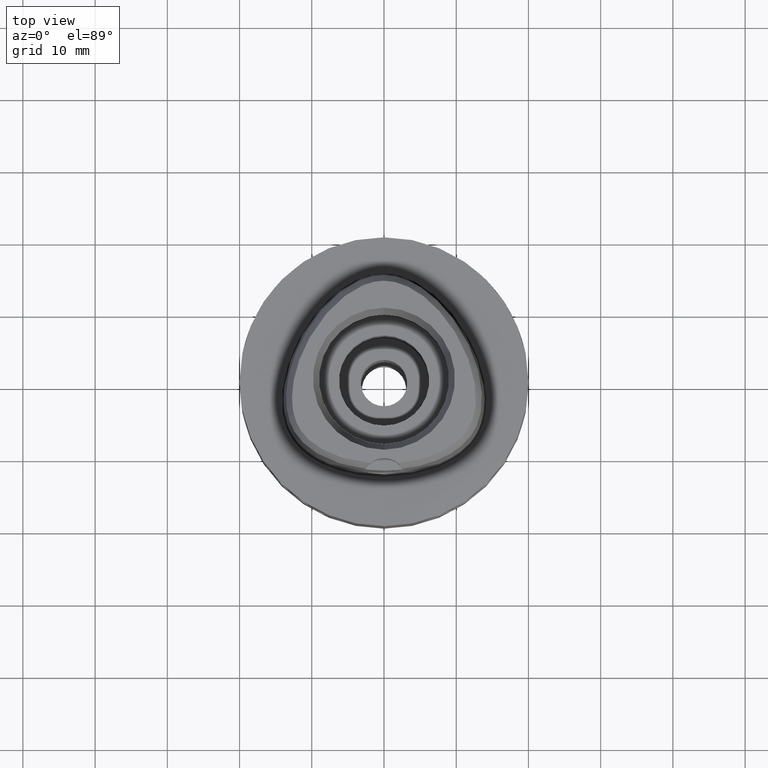
[diagram: clean part render]
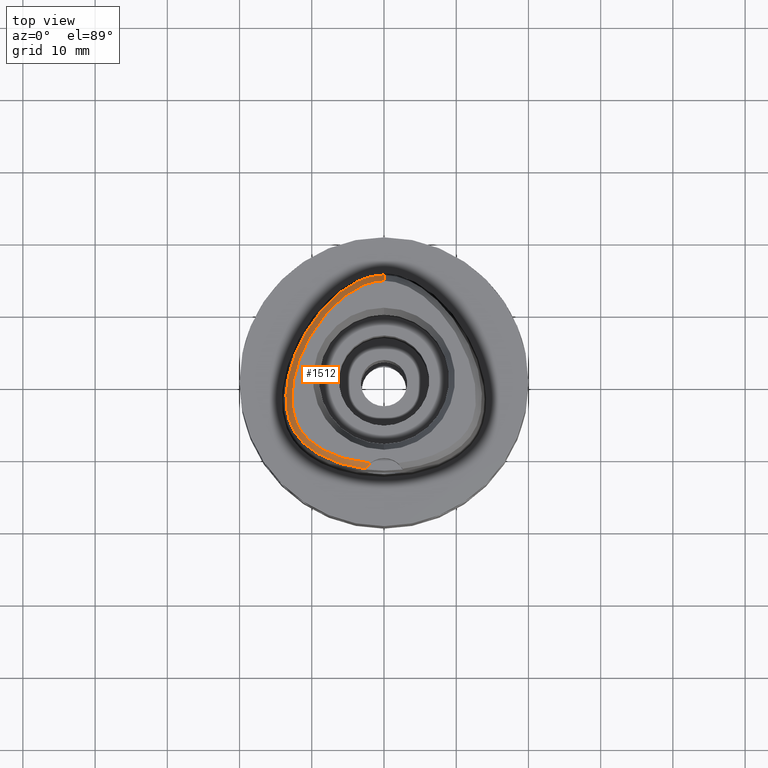
[diagram: same view with one face highlighted and labeled with its STEP entity id]
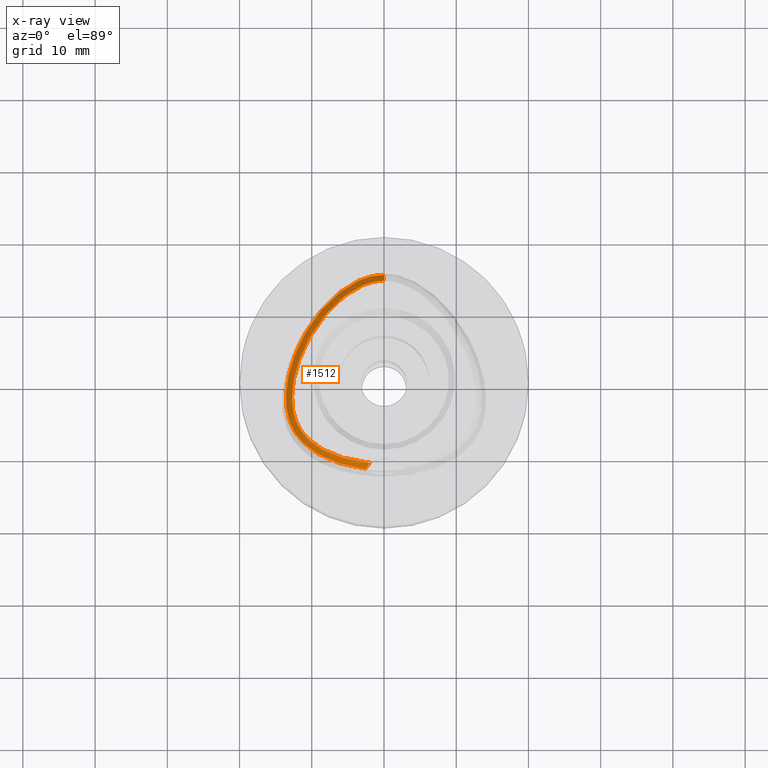
[diagram: x-ray of the same camera — body ghosted, the highlighted face saturated]
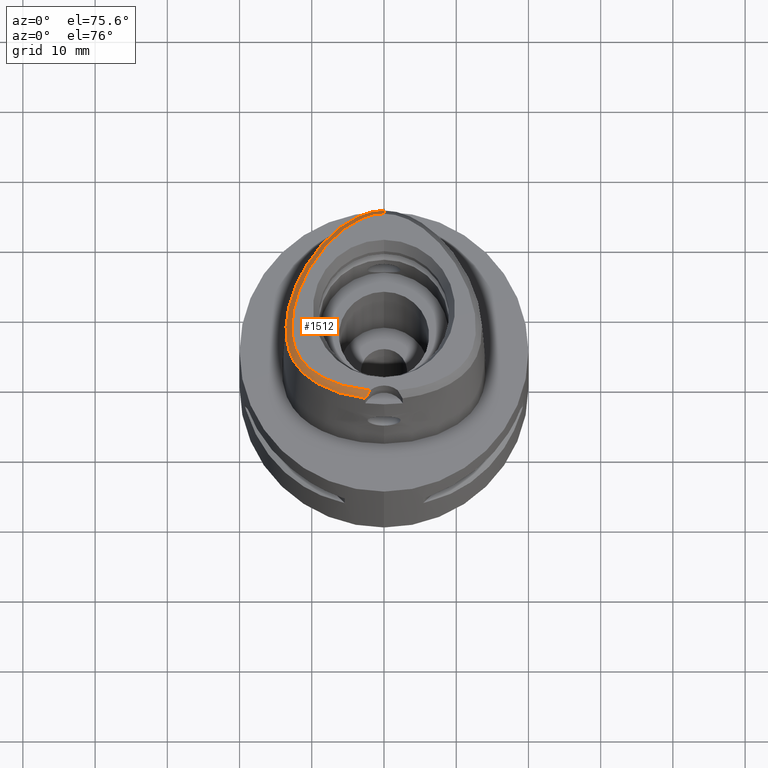
[diagram: same view with one face highlighted and labeled with its STEP entity id]
A machine part, top view. The second image highlights one B-rep face of the part: STEP entity #1512.
The next image is the same camera in x-ray: the body ghosted, the highlighted face saturated — about 0% of this face is hidden behind the body in this view.
A second angle (auxiliary view) of the same face is appended — the face is thin or edge-on in the first view.
In plain terms, the highlighted face is a freeform B-spline surface patch.
Its self-contained STEP definition (entity closure, byte-faithful):
#13 = VECTOR ( 'NONE', #2092, 999.9999999999998863 ) ;
#25 = CARTESIAN_POINT ( 'NONE',  ( -6.443149272929000311E-11, 14.40001989798000182, 22.52071729252999788 ) ) ;
#32 = CARTESIAN_POINT ( 'NONE',  ( -0.5587112659834999606, 14.44388080763000026, 22.41684450240000359 ) ) ;
#46 = CARTESIAN_POINT ( 'NONE',  ( -12.25469206170605219, -5.716132091641457968, 24.00000000000688871 ) ) ;
#66 = CARTESIAN_POINT ( 'NONE',  ( -5.772139147997672026, -10.95484250004509086, 23.99999999999592859 ) ) ;
#113 = CARTESIAN_POINT ( 'NONE',  ( -12.61525294082025894, -0.8186751790038890864, 23.99999999999378275 ) ) ;
#116 = CARTESIAN_POINT ( 'NONE',  ( -12.97551377064000100, -5.338984517884000525, 22.97916533765000224 ) ) ;
#119 = CARTESIAN_POINT ( 'NONE',  ( -1.140533558630999922, 14.37695949581000043, 22.41684463344000022 ) ) ;
#137 = CARTESIAN_POINT ( 'NONE',  ( -10.27173464031000094, -8.914690186308000364, 23.54148595951999923 ) ) ;
#162 = CARTESIAN_POINT ( 'NONE',  ( -12.60905440550000023, -3.966745885157999751, 24.10380662193999868 ) ) ;
#184 = CARTESIAN_POINT ( 'NONE',  ( -10.06954171409999965, -8.672755295886998894, 24.10380665870999906 ) ) ;
#202 = CARTESIAN_POINT ( 'NONE',  ( -11.80291349019999991, -7.208535613558999522, 23.54148591064999962 ) ) ;
#229 = CARTESIAN_POINT ( 'NONE',  ( -7.666612691137999924, -10.51786196347999791, 23.54148587361000011 ) ) ;
#255 = CARTESIAN_POINT ( 'NONE',  ( -7.925363593001000240, -11.09282319319000010, 22.41684426452999901 ) ) ;
#270 = CARTESIAN_POINT ( 'NONE',  ( -11.21140785288000075, 4.530865700386000228, 23.54148635299999981 ) ) ;
#280 = CARTESIAN_POINT ( 'NONE',  ( -5.847186997153000831, -11.20067959551999870, 23.54148721676999756 ) ) ;
#292 = CARTESIAN_POINT ( 'NONE',  ( -12.42192831520000063, 2.394620130643000167, 22.97916540028000298 ) ) ;
#316 = CARTESIAN_POINT ( 'NONE',  ( -10.52705446654000099, 7.074799394935999963, 22.41684537186999648 ) ) ;
#327 = CARTESIAN_POINT ( 'NONE',  ( -1.699756482293000026, -12.27757190400999932, 22.97916598236000141 ) ) ;
#337 = EDGE_CURVE ( 'NONE', #2611, #3045, #1459, .T. ) ;
#341 = CARTESIAN_POINT ( 'NONE',  ( -5.136066826567000199, 12.75801933414000189, 22.41684930851999979 ) ) ;
#351 = CARTESIAN_POINT ( 'NONE',  ( -12.56273685367470350, -4.606827092195338480, 24.00000000000433431 ) ) ;
#363 = CARTESIAN_POINT ( 'NONE',  ( -6.057020119515000189, 10.88383457347000061, 24.10380660268999975 ) ) ;
#378 = CARTESIAN_POINT ( 'NONE',  ( -0.5099131192452001082, 13.81508828016000123, 23.54148594250999693 ) ) ;
#395 = CARTESIAN_POINT ( 'NONE',  ( -2.090687641573861111, -11.66928185012599073, 23.99999999999905498 ) ) ;
#419 = CARTESIAN_POINT ( 'NONE',  ( -9.587006019868628215, -9.122502708652755032, 24.00000000000070699 ) ) ;
#473 = CARTESIAN_POINT ( 'NONE',  ( -9.075996546496414297, -10.47368666963087058, 22.52071717950003915 ) ) ;
#492 = CARTESIAN_POINT ( 'NONE',  ( -12.69042073802000026, -2.527353242947999679, 24.10380664842000087 ) ) ;
#494 = CARTESIAN_POINT ( 'NONE',  ( -2.085007463664000138, 13.18870631288999995, 24.10380668342000021 ) ) ;
#508 = CARTESIAN_POINT ( 'NONE',  ( -9.086067383146117393, 7.628776179868300922, 24.00000000000251532 ) ) ;
#512 = CARTESIAN_POINT ( 'NONE',  ( -10.47392756652000045, -9.156625076727999968, 22.97916526031999851 ) ) ;
#527 = CARTESIAN_POINT ( 'NONE',  ( -12.20504609755509051, 1.147983555867035266, 23.99999999999583977 ) ) ;
#534 = CARTESIAN_POINT ( 'NONE',  ( -12.19991647383000100, -5.696431215580000540, 24.10380661763000276 ) ) ;
#556 = CARTESIAN_POINT ( 'NONE',  ( -13.49374773732000143, -0.6923154879764999992, 22.41684465063999809 ) ) ;
#576 = CARTESIAN_POINT ( 'NONE',  ( -12.33185262397000059, -7.552035420339000105, 22.41684439239999804 ) ) ;
#607 = CARTESIAN_POINT ( 'NONE',  ( -12.48241503205562175, -7.206725678149776826, 22.52071717950003915 ) ) ;
#618 = CARTESIAN_POINT ( 'NONE',  ( -3.286966782461000047, 12.71674937300000074, 24.10380639701000050 ) ) ;
#627 = CARTESIAN_POINT ( 'NONE',  ( -7.537237240207000255, -10.23038134863000082, 24.10380667815000066 ) ) ;
#638 = CARTESIAN_POINT ( 'NONE',  ( -11.82504604558000061, 2.191689508729000035, 24.10380664447000143 ) ) ;
#662 = CARTESIAN_POINT ( 'NONE',  ( -9.047615977473000726, 9.144186784852001537, 22.41684441057999777 ) ) ;
#672 = CARTESIAN_POINT ( 'NONE',  ( -1.650782096077000105, -11.64940696278000054, 24.10380658528000097 ) ) ;
#687 = CARTESIAN_POINT ( 'NONE',  ( -12.39158090488999875, 0.1220192446411000053, 24.10380641104000077 ) ) ;
#713 = CARTESIAN_POINT ( 'NONE',  ( -3.936619554336000526, 12.38037942558000104, 24.10380621796000256 ) ) ;
#725 = CARTESIAN_POINT ( 'NONE',  ( -2.674008066188253707, -11.60894038318100385, 23.99999999999576517 ) ) ;
#728 = CARTESIAN_POINT ( 'NONE',  ( -0.4855140458760999755, 13.50069201642000039, 24.10380666255999671 ) ) ;
#747 = CARTESIAN_POINT ( 'NONE',  ( 0.3758632881470999609, 13.81820686212999938, 23.54148593387999711 ) ) ;
#766 = CARTESIAN_POINT ( 'NONE',  ( -4.742193981401064740, -11.23614232520673006, 24.00000000000749623 ) ) ;
#794 = CARTESIAN_POINT ( 'NONE',  ( 0.4105800381374000718, 14.44727814113999997, 22.41684447259000024 ) ) ;
#835 = CARTESIAN_POINT ( 'NONE',  ( -13.28318964533000113, -1.661111837063999896, 22.97916527911999651 ) ) ;
#840 = CARTESIAN_POINT ( 'NONE',  ( -1.669963073954999988, 13.95397741518000068, 22.97916563516999844 ) ) ;
#857 = CARTESIAN_POINT ( 'NONE',  ( -0.1649659295969297945, 13.57127880779930074, 23.99999999999904077 ) ) ;
#861 = CARTESIAN_POINT ( 'NONE',  ( -11.14601654370999917, -8.068630663902998990, 23.54148605030999875 ) ) ;
#882 = CARTESIAN_POINT ( 'NONE',  ( -12.86783612342000005, -6.566596422905000452, 22.41684485336000066 ) ) ;
#886 = CARTESIAN_POINT ( 'NONE',  ( -8.737913808020921991, 9.598635897784602022, 22.52071717950003915 ) ) ;
#906 = CARTESIAN_POINT ( 'NONE',  ( -12.65460634640999871, -1.710361094012999850, 24.10380665678999890 ) ) ;
#913 = CARTESIAN_POINT ( 'NONE',  ( -13.49620532111569737, -4.288887307616998434, 22.52071717950003915 ) ) ;
#926 = EDGE_CURVE ( 'NONE', #1671, #3103, #2069, .T. ) ;
#928 = CARTESIAN_POINT ( 'NONE',  ( -12.36783527128000060, -5.170387074255000215, 24.10380665085000018 ) ) ;
#969 = CARTESIAN_POINT ( 'NONE',  ( -8.311964507322999296, 8.550000847090000633, 24.10380666857999898 ) ) ;
#977 = CARTESIAN_POINT ( 'NONE',  ( -7.024286928901999794, -11.46519040745999973, 22.41684585830000032 ) ) ;
#984 = CARTESIAN_POINT ( 'NONE',  ( -13.19588017074434383, -5.576003004572641863, 22.52071717950003915 ) ) ;
#995 = CARTESIAN_POINT ( 'NONE',  ( -2.901150047562000456, 13.57035146543999815, 22.97916493167999974 ) ) ;
#1006 = CARTESIAN_POINT ( 'NONE',  ( -8.440659236000000121, -10.13734018728999864, 23.54148601579000299 ) ) ;
#1016 = CARTESIAN_POINT ( 'NONE',  ( -6.672720912247000591, 11.60166517212999970, 22.41684541544000098 ) ) ;
#1026 = CARTESIAN_POINT ( 'NONE',  ( -9.295464573598000158, -10.00775292844000042, 22.97916577844000230 ) ) ;
#1039 = CARTESIAN_POINT ( 'NONE',  ( -5.515257369087000150, 11.72233301594999944, 23.54148583502000136 ) ) ;
#1066 = CARTESIAN_POINT ( 'NONE',  ( -3.693957379602000213, 13.57055876278000106, 22.41684855217000205 ) ) ;
#1082 = FACE_OUTER_BOUND ( 'NONE', #2062, .T. ) ;
#1165 = CARTESIAN_POINT ( 'NONE',  ( -8.993364728475985004, -9.521626202593669319, 24.00000000000109779 ) ) ;
#1171 = CARTESIAN_POINT ( 'NONE',  ( 0.2360216581145999915, 13.50991829754000051, 24.10380664186000033 ) ) ;
#1173 = CARTESIAN_POINT ( 'NONE',  ( -3.014424021963416411, -12.39773933600168832, 22.52071717950003915 ) ) ;
#1186 = CARTESIAN_POINT ( 'NONE',  ( -6.094907065610416730, 10.92800604363542760, 24.00000000000135358 ) ) ;
#1190 = CARTESIAN_POINT ( 'NONE',  ( -12.81483659771999939, -4.657277590897000330, 23.54148596008999661 ) ) ;
#1193 = CARTESIAN_POINT ( 'NONE',  ( -1.526970197572999899, 13.33976193712999958, 24.10380662058999945 ) ) ;
#1207 = CARTESIAN_POINT ( 'NONE',  ( -2.568703252653000479, -12.45023756080000155, 22.52071717950000007 ) ) ;
#1215 = CARTESIAN_POINT ( 'NONE',  ( -13.30237575890999935, -3.313853358129000171, 22.97916603002999736 ) ) ;
#1237 = CARTESIAN_POINT ( 'NONE',  ( -13.12401121793999970, -4.719149981269000094, 22.97916526159999862 ) ) ;
#1252 = CARTESIAN_POINT ( 'NONE',  ( -10.97950574081377439, 4.420048049596443818, 23.99999999999947065 ) ) ;
#1255 = CARTESIAN_POINT ( 'NONE',  ( -12.98759379449999862, -3.296150082543999993, 23.54148630523000207 ) ) ;
#1281 = CARTESIAN_POINT ( 'NONE',  ( -12.00008352042999960, -8.023300398978999937, 22.41684532163999677 ) ) ;
#1308 = CARTESIAN_POINT ( 'NONE',  ( -4.875545472812000014, -11.79264091854000185, 22.97916713324999805 ) ) ;
#1313 = CARTESIAN_POINT ( 'NONE',  ( -11.01301038052233494, 6.358384390486220283, 22.52071717950003915 ) ) ;
#1323 = CARTESIAN_POINT ( 'NONE',  ( -9.295163196064999411, 7.778236719377999542, 23.54148641852000168 ) ) ;
#1332 = CARTESIAN_POINT ( 'NONE',  ( -1.675269289185000066, -11.96348943340000126, 23.54148628381999941 ) ) ;
#1347 = CARTESIAN_POINT ( 'NONE',  ( -7.465916122270000344, 10.87885843689000076, 22.41684759708000030 ) ) ;
#1357 = CARTESIAN_POINT ( 'NONE',  ( -6.913607317285999976, -11.17001860195999896, 22.97916609674999933 ) ) ;
#1374 = CARTESIAN_POINT ( 'NONE',  ( -12.29319110894000033, 3.641832017933000376, 22.41684468023999699 ) ) ;
#1385 = CARTESIAN_POINT ( 'NONE',  ( -1.724243675399999898, -12.59165437463000004, 22.41684568089999630 ) ) ;
#1397 = CARTESIAN_POINT ( 'NONE',  ( -13.06098757605000138, 1.382478498715000281, 22.41684865862000109 ) ) ;
#1414 = CARTESIAN_POINT ( 'NONE',  ( -7.796255767189999908, 9.633441591037998464, 23.54148630717000046 ) ) ;
#1430 = CARTESIAN_POINT ( 'NONE',  ( -1.908902231482000111, -11.68567671431999955, 24.00000000000000000 ) ) ;
#1435 = CARTESIAN_POINT ( 'NONE',  ( 0.3932216631423000042, 14.13274250164000101, 22.97916520322999645 ) ) ;
#1459 = B_SPLINE_CURVE_WITH_KNOTS ( 'NONE', 3,
 ( #1430, #3951, #2173, #2819 ),
 .UNSPECIFIED., .F., .F.,
 ( 4, 4 ),
 ( 0.0000000000000000000, 1.000000000000000000 ),
 .UNSPECIFIED. ) ;
#1462 = CARTESIAN_POINT ( 'NONE',  ( -0.9957134845631000486, 13.44212022041999965, 24.10380665396999689 ) ) ;
#1512 = ADVANCED_FACE ( 'NONE', ( #1082 ), #1537, .F. ) ;
#1523 = CARTESIAN_POINT ( 'NONE',  ( -3.634083631275654813, -11.46763769350052975, 23.99999999999974776 ) ) ;
#1537 = B_SPLINE_SURFACE_WITH_KNOTS ( 'NONE', 3, 3, ( 
 ( #1900, #747, #1435, #794 ),
 ( #1171, #2849, #4267, #3582 ),
 ( #2219, #2498, #4001, #3910 ),
 ( #728, #378, #4289, #32 ),
 ( #1462, #2606, #4378, #119 ),
 ( #1193, #4025, #840, #2264 ),
 ( #494, #1550, #3678, #2961 ),
 ( #3301, #4155, #995, #3125 ),
 ( #618, #3100, #2729, #1066 ),
 ( #713, #2118, #2141, #3801 ),
 ( #4222, #2782, #3497, #341 ),
 ( #2384, #1039, #3544, #4203 ),
 ( #363, #3077, #1771, #1016 ),
 ( #2457, #2413, #2047, #1347 ),
 ( #3170, #1414, #4495, #4593 ),
 ( #969, #2433, #4547, #662 ),
 ( #2754, #1323, #3525, #1749 ),
 ( #3452, #2830, #4246, #316 ),
 ( #3827, #3472, #3149, #2482 ),
 ( #3895, #270, #2802, #3875 ),
 ( #1705, #4517, #4181, #1374 ),
 ( #638, #2068, #292, #3847 ),
 ( #1726, #2091, #4570, #1397 ),
 ( #687, #3366, #2350, #4021 ),
 ( #4435, #3003, #3717, #556 ),
 ( #906, #4418, #835, #1980 ),
 ( #492, #3674, #1548, #2648 ),
 ( #1938, #1255, #1215, #2602 ),
 ( #162, #3384, #1639, #3298 ),
 ( #2958, #1190, #1237, #3341 ),
 ( #928, #1570, #116, #3741 ),
 ( #534, #2283, #3041, #4087 ),
 ( #4066, #2671, #2628, #882 ),
 ( #2261, #4458, #3697, #1616 ),
 ( #3020, #202, #2327, #576 ),
 ( #1594, #1917, #4045, #1281 ),
 ( #2693, #861, #4374, #2303 ),
 ( #3759, #4116, #3318, #1962 ),
 ( #184, #137, #512, #2981 ),
 ( #4402, #4211, #3884, #2738 ),
 ( #2423, #2003, #1026, #2468 ),
 ( #3086, #1006, #3407, #2056 ),
 ( #627, #229, #2105, #255 ),
 ( #3135, #3461, #1357, #977 ),
 ( #3434, #280, #2394, #1714 ),
 ( #2443, #4233, #1308, #4164 ),
 ( #3837, #1691, #3064, #3812 ),
 ( #3858, #4557, #3509, #4503 ),
 ( #1735, #3111, #1666, #4529 ),
 ( #672, #1332, #327, #1385 ),
 ( #2767, #1760, #2791, #3159 ) ),
 .UNSPECIFIED., .F., .F., .F.,
 ( 4, 1, 1, 1, 1, 1, 1, 1, 1, 1, 1, 1, 1, 1, 1, 1, 1, 1, 1, 1, 1, 1, 1, 1, 1, 1, 1, 1, 1, 1, 1, 1, 1, 1, 1, 1, 1, 1, 1, 1, 1, 1, 1, 1, 1, 1, 1, 1, 4 ),
 ( 4, 4 ),
 ( -0.01579924575333999798, 0.0000000000000000000, 0.02200280252723000110, 0.04400560505777000031, 0.06600840758830001098, 0.08801121011883999978, 0.1100140126494000004, 0.1320168151798999934, 0.1540196177104999897, 0.1760224202409000072, 0.1980252227715000035, 0.2200280253019999965, 0.2420308278325999929, 0.2640336303632000448, 0.2860364328937000100, 0.3080392354242000308, 0.3300420379546999960, 0.3520448404853000479, 0.3740476430157999577, 0.3960504455463999540, 0.4180532480767999992, 0.4400560506073999956, 0.4620588531379000163, 0.4840616556684999572, 0.5060644581990999535, 0.5280672607295000542, 0.5500700632601001061, 0.5720728657906000159, 0.5940756683211999567, 0.6160784708517000885, 0.6380812733821999982, 0.6600840759127000190, 0.6820868784432999599, 0.7040896809739000117, 0.7260924835043999215, 0.7480952860348999423, 0.7700980885653999630, 0.7921008910960000149, 0.8141036936264999246, 0.8361064961570999765, 0.8581092986875999973, 0.8801121012181000181, 0.9021149037485999278, 0.9241177062791999797, 0.9461205088098000315, 0.9681233113403000523, 0.9901261138707999621, 1.000000000000000000, 1.006872802233000019 ),
 ( -0.04824381052662999464, 1.048285641617000108 ),
 .UNSPECIFIED. ) ;
#1545 = CARTESIAN_POINT ( 'NONE',  ( -8.357232578963559533, 8.586563883649830586, 24.00000000000259703 ) ) ;
#1548 = CARTESIAN_POINT ( 'NONE',  ( -13.32090963439000042, -2.519845155334999642, 22.97916536149000066 ) ) ;
#1550 = CARTESIAN_POINT ( 'NONE',  ( -2.178894131602000517, 13.48971271545000050, 23.54148585033000174 ) ) ;
#1570 = CARTESIAN_POINT ( 'NONE',  ( -12.67167452095999991, -5.254685796070000414, 23.54148599424999944 ) ) ;
#1594 = CARTESIAN_POINT ( 'NONE',  ( -11.24840162645999797, -7.448943767660000326, 24.10380660885000026 ) ) ;
#1599 = B_SPLINE_CURVE_WITH_KNOTS ( 'NONE', 3,
 ( #3272, #395, #725, #1523, #766, #66, #3974, #2932, #2151, #1165, #419, #3598, #2556, #2131, #2172, #3575, #2575, #1827, #46, #3535, #351, #3315, #1977, #4063, #3037, #113, #2300, #527, #3692, #4416, #1252, #4016, #1613, #508, #1545, #2668, #4452, #1186, #4370, #2234, #3337, #2597, #2623, #1958, #1913, #3295, #2256, #857, #4084 ),
 .UNSPECIFIED., .F., .F.,
 ( 4, 1, 1, 1, 1, 1, 1, 1, 1, 1, 1, 1, 1, 1, 1, 1, 1, 1, 1, 1, 1, 1, 1, 1, 1, 1, 1, 1, 1, 1, 1, 1, 1, 1, 1, 1, 1, 1, 1, 1, 1, 1, 1, 1, 1, 1, 4 ),
 ( 0.0000000000000000000, 0.009873886129200037942, 0.03187668865969994769, 0.05387949119019996846, 0.07588229372080002033, 0.09788509625140007220, 0.1198878987818999819, 0.1418907013124000027, 0.1638935038429000235, 0.1858963063735000754, 0.2078991089039999851, 0.2299019114346000370, 0.2519047139651000577, 0.2739075164956000785, 0.2959103190260999883, 0.3179131215567000401, 0.3399159240872999810, 0.3619187266178000018, 0.3839215291482999115, 0.4059243316788000433, 0.4279271342093999841, 0.4499299367398998939, 0.4719327392704999458, 0.4939355418009000465, 0.5159383443314999873, 0.5379411468621000392, 0.5599439493925999489, 0.5819467519232000008, 0.6039495544535999905, 0.6259523569842000423, 0.6479551595146999521, 0.6699579620453000040, 0.6919607645757999137, 0.7139635671063000455, 0.7359663696367999552, 0.7579691721674000071, 0.7799719746980000590, 0.8019747772284999687, 0.8239775797591000206, 0.8459803822895000103, 0.8679831848201000621, 0.8899859873505999719, 0.9119887898811600557, 0.9339915924116999335, 0.9559943949422300413, 0.9779971974727700301, 1.000000000000000000 ),
 .UNSPECIFIED. ) ;
#1613 = CARTESIAN_POINT ( 'NONE',  ( -9.776246037422039237, 6.601694411330732315, 24.00000000000379430 ) ) ;
#1616 = CARTESIAN_POINT ( 'NONE',  ( -12.61590839958000032, -7.074826715853000714, 22.41684487104999945 ) ) ;
#1639 = CARTESIAN_POINT ( 'NONE',  ( -13.23464268342000061, -4.045965643180999827, 22.97916562191000267 ) ) ;
#1666 = CARTESIAN_POINT ( 'NONE',  ( -2.017796862928999957, -12.25179383172999970, 22.97916596773000109 ) ) ;
#1671 = VERTEX_POINT ( 'NONE', #25 ) ;
#1691 = CARTESIAN_POINT ( 'NONE',  ( -3.678882363008999956, -11.72072933987000098, 23.54148578947999937 ) ) ;
#1705 = CARTESIAN_POINT ( 'NONE',  ( -11.41754441929999864, 3.284797410737999801, 24.10380665089999752 ) ) ;
#1714 = CARTESIAN_POINT ( 'NONE',  ( -6.031264060377999670, -11.80366783668999808, 22.41684890217000259 ) ) ;
#1726 = CARTESIAN_POINT ( 'NONE',  ( -12.14892247080999965, 1.132607847390999956, 24.10380639002999814 ) ) ;
#1735 = CARTESIAN_POINT ( 'NONE',  ( -1.959543403636999859, -11.62438029792000016, 24.10380658677000199 ) ) ;
#1749 = CARTESIAN_POINT ( 'NONE',  ( -9.808032566841999866, 8.144832930868000531, 22.41684614599000014 ) ) ;
#1755 = EDGE_CURVE ( 'NONE', #2611, #3103, #1599, .T. ) ;
#1760 = CARTESIAN_POINT ( 'NONE',  ( -1.546242958262000089, -11.97276603203000001, 23.54148627897999901 ) ) ;
#1771 = CARTESIAN_POINT ( 'NONE',  ( -6.467487314669999598, 11.36238830591000060, 22.97916581119000057 ) ) ;
#1827 = CARTESIAN_POINT ( 'NONE',  ( -12.05760136209954325, -6.203690849628769044, 24.00000000000527578 ) ) ;
#1830 = B_SPLINE_CURVE_WITH_KNOTS ( 'NONE', 3,
 ( #1882, #1173, #2583, #4003, #473, #1902, #4168, #4146, #607, #2744, #984, #913, #3116, #3789, #2720, #1313, #886, #4440, #4122, #4486, #4094, #2334 ),
 .UNSPECIFIED., .F., .F.,
 ( 4, 1, 1, 1, 1, 1, 1, 1, 1, 1, 1, 1, 1, 1, 1, 1, 1, 1, 1, 4 ),
 ( 0.0000000000000000000, 0.03040433083232843212, 0.1185493916654646457, 0.1626219220818741484, 0.2066944524983893583, 0.2507669829150103724, 0.2728032481232151030, 0.2948395133314197780, 0.3168757785398360061, 0.3389120437480407366, 0.3829845741645559465, 0.4270571045810711563, 0.4711296349975864772, 0.5592746958306168414, 0.6474197566637530654, 0.7355648174967834851, 0.8237098783298139049, 0.9118549391628549827, 0.9559274695793701371, 1.000000000000000000 ),
 .UNSPECIFIED. ) ;
#1882 = CARTESIAN_POINT ( 'NONE',  ( -2.568703252653000479, -12.45023756080000155, 22.52071717950000007 ) ) ;
#1900 = CARTESIAN_POINT ( 'NONE',  ( 0.3585049131519999488, 13.50367122261999953, 24.10380666452000042 ) ) ;
#1902 = CARTESIAN_POINT ( 'NONE',  ( -10.46238780242630462, -9.543613000371102828, 22.52071717950003915 ) ) ;
#1913 = CARTESIAN_POINT ( 'NONE',  ( -1.540168727110680091, 13.39645525874533760, 24.00000000000214939 ) ) ;
#1917 = CARTESIAN_POINT ( 'NONE',  ( -11.49896225778000058, -7.640395978099999930, 23.54148617978000146 ) ) ;
#1938 = CARTESIAN_POINT ( 'NONE',  ( -12.67281183008999967, -3.278446806959999460, 24.10380658044000057 ) ) ;
#1947 = ORIENTED_EDGE ( 'NONE', *, *, #1755, .T. ) ;
#1958 = CARTESIAN_POINT ( 'NONE',  ( -2.102339319506436155, 13.24427330329874586, 23.99999999999674571 ) ) ;
#1962 = CARTESIAN_POINT ( 'NONE',  ( -11.17747995390999982, -8.946724660440001031, 22.41684467953000137 ) ) ;
#1977 = CARTESIAN_POINT ( 'NONE',  ( -12.73092184452309539, -3.281714902708848580, 24.00000000000363443 ) ) ;
#1980 = CARTESIAN_POINT ( 'NONE',  ( -13.59748129478999878, -1.636487208589000097, 22.41684459029000109 ) ) ;
#2003 = CARTESIAN_POINT ( 'NONE',  ( -9.129054684189000568, -9.739972934529999904, 23.54148619223000338 ) ) ;
#2045 = ORIENTED_EDGE ( 'NONE', *, *, #337, .F. ) ;
#2047 = CARTESIAN_POINT ( 'NONE',  ( -7.246259305341000712, 10.65276357070999858, 22.97916721793000150 ) ) ;
#2056 = CARTESIAN_POINT ( 'NONE',  ( -8.736586364969999963, -10.69410660169999971, 22.41684475541000054 ) ) ;
#2062 = EDGE_LOOP ( 'NONE', ( #1947, #3830, #2758, #2045 ) ) ;
#2068 = CARTESIAN_POINT ( 'NONE',  ( -12.12348718039000062, 2.293154819685999879, 23.54148602238000265 ) ) ;
#2069 = LINE ( 'NONE', #3126, #13 ) ;
#2091 = CARTESIAN_POINT ( 'NONE',  ( -12.45294417256000230, 1.215898064498999842, 23.54148714623000060 ) ) ;
#2092 = DIRECTION ( 'NONE',  ( -4.075833914959980220E-11, -0.4887572544032980359, 0.8724198222576960982 ) ) ;
#2105 = CARTESIAN_POINT ( 'NONE',  ( -7.795988142068999593, -10.80534257833999945, 22.97916506906999956 ) ) ;
#2118 = CARTESIAN_POINT ( 'NONE',  ( -4.091458281383999918, 12.65500711826999947, 23.54148790625000132 ) ) ;
#2131 = CARTESIAN_POINT ( 'NONE',  ( -10.95406941133564516, -7.897563445518309244, 24.00000000000066080 ) ) ;
#2141 = CARTESIAN_POINT ( 'NONE',  ( -4.246297008431999309, 12.92963481095999967, 22.97916959454000008 ) ) ;
#2151 = CARTESIAN_POINT ( 'NONE',  ( -8.320010339569924085, -9.910347637803310406, 24.00000000000452260 ) ) ;
#2172 = CARTESIAN_POINT ( 'NONE',  ( -11.29465612496564297, -7.484286614359523249, 24.00000000001034905 ) ) ;
#2173 = CARTESIAN_POINT ( 'NONE',  ( -2.377475776451483114, -12.13328147861722961, 23.12252443329084883 ) ) ;
#2219 = CARTESIAN_POINT ( 'NONE',  ( -0.04784606601029000456, 13.51758613221999994, 24.10380662465000157 ) ) ;
#2234 = CARTESIAN_POINT ( 'NONE',  ( -4.649494456246800134, 12.01569862248405407, 23.99999999999809219 ) ) ;
#2256 = CARTESIAN_POINT ( 'NONE',  ( -0.4900182128078075516, 13.55873082895754322, 24.00000000000426681 ) ) ;
#2261 = CARTESIAN_POINT ( 'NONE',  ( -11.78479527222000023, -6.622892771238000797, 24.10380663838999737 ) ) ;
#2264 = CARTESIAN_POINT ( 'NONE',  ( -1.741459512147000011, 14.26108515421000078, 22.41684514246000148 ) ) ;
#2283 = CARTESIAN_POINT ( 'NONE',  ( -12.49663584865000132, -5.803150866706000777, 23.54148614098000181 ) ) ;
#2300 = CARTESIAN_POINT ( 'NONE',  ( -12.44854562273085108, 0.1339138360837262842, 24.00000000000540012 ) ) ;
#2303 = CARTESIAN_POINT ( 'NONE',  ( -11.61682369966999850, -8.488223650624000527, 22.41684487462000064 ) ) ;
#2327 = CARTESIAN_POINT ( 'NONE',  ( -12.06738305708999981, -7.380285516949000701, 22.97916515152000017 ) ) ;
#2334 = CARTESIAN_POINT ( 'NONE',  ( -6.443149272929000311E-11, 14.40001989798000182, 22.52071729252999788 ) ) ;
#2350 = CARTESIAN_POINT ( 'NONE',  ( -13.00873668979000186, 0.2508852549731000470, 22.97916769592000108 ) ) ;
#2384 = CARTESIAN_POINT ( 'NONE',  ( -5.325640518706000748, 11.47048706572999954, 24.10380668688999961 ) ) ;
#2394 = CARTESIAN_POINT ( 'NONE',  ( -5.939225528766000295, -11.50217371610000150, 22.97916805946999830 ) ) ;
#2413 = CARTESIAN_POINT ( 'NONE',  ( -7.026602488412000191, 10.42666870452999994, 23.54148683879000004 ) ) ;
#2423 = CARTESIAN_POINT ( 'NONE',  ( -8.962644794779999202, -9.472192940620999480, 24.10380660602000091 ) ) ;
#2433 = CARTESIAN_POINT ( 'NONE',  ( -8.557181664039998026, 8.748062826343998566, 23.54148591590999828 ) ) ;
#2440 = EDGE_CURVE ( 'NONE', #3045, #1671, #1830, .T. ) ;
#2443 = CARTESIAN_POINT ( 'NONE',  ( -4.728633732891999841, -11.17955308768999956, 24.10380646826000017 ) ) ;
#2457 = CARTESIAN_POINT ( 'NONE',  ( -6.806945671482000471, 10.20057383834999953, 24.10380645964000124 ) ) ;
#2468 = CARTESIAN_POINT ( 'NONE',  ( -9.461874463005999658, -10.27553292235000093, 22.41684536464999766 ) ) ;
#2482 = CARTESIAN_POINT ( 'NONE',  ( -11.18828761090999890, 5.954441152197999187, 22.41684471480000340 ) ) ;
#2498 = CARTESIAN_POINT ( 'NONE',  ( -0.05010485863433000037, 13.83284336954999993, 23.54148610992000101 ) ) ;
#2556 = CARTESIAN_POINT ( 'NONE',  ( -10.56030324369939244, -8.308636727332295635, 23.99999999999781863 ) ) ;
#2575 = CARTESIAN_POINT ( 'NONE',  ( -11.83593754558896549, -6.650702378112616664, 24.00000000000621014 ) ) ;
#2583 = CARTESIAN_POINT ( 'NONE',  ( -4.736458213768415249, -12.13940339377969835, 22.52071717950003915 ) ) ;
#2597 = CARTESIAN_POINT ( 'NONE',  ( -3.312010815207358405, 12.76928825342453244, 23.99999999999596056 ) ) ;
#2602 = CARTESIAN_POINT ( 'NONE',  ( -13.61715772330999918, -3.331556633712999815, 22.41684575483000330 ) ) ;
#2606 = CARTESIAN_POINT ( 'NONE',  ( -1.043986842586000163, 13.75373331221999962, 23.54148598045999918 ) ) ;
#2611 = VERTEX_POINT ( 'NONE', #4464 ) ;
#2623 = CARTESIAN_POINT ( 'NONE',  ( -2.691801546374842591, 13.03762140635102540, 23.99999999999624478 ) ) ;
#2628 = CARTESIAN_POINT ( 'NONE',  ( -12.58004898243000014, -6.437696056779000031, 22.97916544875999989 ) ) ;
#2648 = CARTESIAN_POINT ( 'NONE',  ( -13.63615408257000006, -2.516091111527999580, 22.41684471803000278 ) ) ;
#2668 = CARTESIAN_POINT ( 'NONE',  ( -7.606300872726320605, 9.460291049260103335, 23.99999999999472777 ) ) ;
#2671 = CARTESIAN_POINT ( 'NONE',  ( -12.29226184144000023, -6.308795690651999521, 23.54148604414999824 ) ) ;
#2693 = CARTESIAN_POINT ( 'NONE',  ( -10.91061296572999950, -7.858834170542000841, 24.10380663815000091 ) ) ;
#2720 = CARTESIAN_POINT ( 'NONE',  ( -12.68166860123646167, 2.767886241323621821, 22.52071717950003915 ) ) ;
#2729 = CARTESIAN_POINT ( 'NONE',  ( -3.558293847220999506, 13.28595563286000036, 22.97916783377999650 ) ) ;
#2738 = CARTESIAN_POINT ( 'NONE',  ( -10.10651528508999952, -9.842258859100999402, 22.41684557648000009 ) ) ;
#2744 = CARTESIAN_POINT ( 'NONE',  ( -12.82590901148873819, -6.531187915556358803, 22.52071717950003915 ) ) ;
#2754 = CARTESIAN_POINT ( 'NONE',  ( -9.038728510675998251, 7.594938613633000379, 24.10380655479000112 ) ) ;
#2758 = ORIENTED_EDGE ( 'NONE', *, *, #2440, .F. ) ;
#2767 = CARTESIAN_POINT ( 'NONE',  ( -1.523658023066999823, -11.65854685661999923, 24.10380658638000284 ) ) ;
#2782 = CARTESIAN_POINT ( 'NONE',  ( -4.790415718951999580, 12.23068981064000127, 23.54148733445000019 ) ) ;
#2791 = CARTESIAN_POINT ( 'NONE',  ( -1.568827893458000000, -12.28698520742999811, 22.97916597157999874 ) ) ;
#2802 = CARTESIAN_POINT ( 'NONE',  ( -11.49581213778999889, 4.666772244946000292, 22.97916613637999816 ) ) ;
#2819 = CARTESIAN_POINT ( 'NONE',  ( -2.568703252653000479, -12.45023756080000155, 22.52071717950000007 ) ) ;
#2830 = CARTESIAN_POINT ( 'NONE',  ( -9.993695441323001916, 6.738715244713000097, 23.54148619432000089 ) ) ;
#2849 = CARTESIAN_POINT ( 'NONE',  ( 0.2476458859470999641, 13.82478475955999997, 23.54148603394000006 ) ) ;
#2932 = CARTESIAN_POINT ( 'NONE',  ( -7.561120467872155082, -10.28345142432355352, 23.99999999999708322 ) ) ;
#2958 = CARTESIAN_POINT ( 'NONE',  ( -12.50566197748999997, -4.595405200524000477, 24.10380665857999816 ) ) ;
#2961 = CARTESIAN_POINT ( 'NONE',  ( -2.366667467477999942, 14.09172552057000161, 22.41684418415999858 ) ) ;
#2981 = CARTESIAN_POINT ( 'NONE',  ( -10.67612049273999908, -9.398559967149001437, 22.41684456113000223 ) ) ;
#3003 = CARTESIAN_POINT ( 'NONE',  ( -12.86968291578999946, -0.7820788404099999758, 23.54148598543000048 ) ) ;
#3020 = CARTESIAN_POINT ( 'NONE',  ( -11.53844392332000091, -7.036785710169000119, 24.10380666976999819 ) ) ;
#3037 = CARTESIAN_POINT ( 'NONE',  ( -12.71262584673478457, -1.705815288732285495, 23.99999999999750244 ) ) ;
#3041 = CARTESIAN_POINT ( 'NONE',  ( -12.79335522345999898, -5.909870517831000036, 22.97916566433000085 ) ) ;
#3045 = VERTEX_POINT ( 'NONE', #1207 ) ;
#3064 = CARTESIAN_POINT ( 'NONE',  ( -3.733823437713999827, -12.03112042711000029, 22.97916488177000005 ) ) ;
#3077 = CARTESIAN_POINT ( 'NONE',  ( -6.262253717093000382, 11.12311143969000149, 23.54148620694000016 ) ) ;
#3086 = CARTESIAN_POINT ( 'NONE',  ( -8.292695671514000111, -9.858956980086000854, 24.10380664596999978 ) ) ;
#3100 = CARTESIAN_POINT ( 'NONE',  ( -3.422630314840999777, 13.00135250293000055, 23.54148711540000249 ) ) ;
#3103 = VERTEX_POINT ( 'NONE', #3713 ) ;
#3111 = CARTESIAN_POINT ( 'NONE',  ( -1.988670133283000130, -11.93808706481999948, 23.54148627725000154 ) ) ;
#3116 = CARTESIAN_POINT ( 'NONE',  ( -13.60847657048523907, -2.623199557594187326, 22.52071717950003915 ) ) ;
#3125 = CARTESIAN_POINT ( 'NONE',  ( -3.016468414959999844, 13.86380262620000181, 22.41684405145999648 ) ) ;
#3126 = CARTESIAN_POINT ( 'NONE',  ( -6.443149272929000311E-11, 14.40001989798000182, 22.52071729252999788 ) ) ;
#3135 = CARTESIAN_POINT ( 'NONE',  ( -6.692248094054000340, -10.57967499093999919, 24.10380657366000179 ) ) ;
#3149 = CARTESIAN_POINT ( 'NONE',  ( -10.91227487788000161, 5.802214513416999786, 22.97916535941000049 ) ) ;
#3159 = CARTESIAN_POINT ( 'NONE',  ( -1.591412828653999911, -12.60120438284000066, 22.41684566418000202 ) ) ;
#3170 = CARTESIAN_POINT ( 'NONE',  ( -7.563295465786000094, 9.421090114048000785, 24.10380657999000320 ) ) ;
#3272 = CARTESIAN_POINT ( 'NONE',  ( -1.908902231482000111, -11.68567671431999955, 24.00000000000000000 ) ) ;
#3295 = CARTESIAN_POINT ( 'NONE',  ( -1.004624940264507771, 13.49964524824662782, 24.00000000000574474 ) ) ;
#3298 = CARTESIAN_POINT ( 'NONE',  ( -13.54743682237999991, -4.085575522192000264, 22.41684512188999889 ) ) ;
#3301 = CARTESIAN_POINT ( 'NONE',  ( -2.670513312766999992, 12.98344914391000060, 24.10380669211999916 ) ) ;
#3315 = CARTESIAN_POINT ( 'NONE',  ( -12.66679745937420520, -3.974058027851244734, 24.00000000000279954 ) ) ;
#3318 = CARTESIAN_POINT ( 'NONE',  ( -10.95826506780999843, -8.720082320791998853, 22.97916533667000039 ) ) ;
#3337 = CARTESIAN_POINT ( 'NONE',  ( -3.965203405003641546, 12.43107680024012751, 23.99999999999351274 ) ) ;
#3341 = CARTESIAN_POINT ( 'NONE',  ( -13.43318583816999912, -4.781022371640999857, 22.41684456311000062 ) ) ;
#3366 = CARTESIAN_POINT ( 'NONE',  ( -12.70015879734000031, 0.1864522498071000123, 23.54148705348000092 ) ) ;
#3384 = CARTESIAN_POINT ( 'NONE',  ( -12.92184854445999953, -4.006355764169000189, 23.54148612192000201 ) ) ;
#3407 = CARTESIAN_POINT ( 'NONE',  ( -8.588622800484998265, -10.41572339449999873, 22.97916538559999822 ) ) ;
#3434 = CARTESIAN_POINT ( 'NONE',  ( -5.755148465540999680, -10.89918547493000034, 24.10380637405999948 ) ) ;
#3452 = CARTESIAN_POINT ( 'NONE',  ( -9.727015928715999848, 6.570673169601000119, 24.10380660555000176 ) ) ;
#3461 = CARTESIAN_POINT ( 'NONE',  ( -6.802927705670000158, -10.87484679645000085, 23.54148633519999834 ) ) ;
#3472 = CARTESIAN_POINT ( 'NONE',  ( -10.63626214485000077, 5.649987874636000384, 23.54148600402000113 ) ) ;
#3497 = CARTESIAN_POINT ( 'NONE',  ( -4.963241272758999401, 12.49435457238999980, 22.97916832147999600 ) ) ;
#3509 = CARTESIAN_POINT ( 'NONE',  ( -2.746423864468999998, -12.17642248771000091, 22.97916572105000199 ) ) ;
#3525 = CARTESIAN_POINT ( 'NONE',  ( -9.551597881452998706, 7.961534825122998704, 22.97916628226000313 ) ) ;
#3535 = CARTESIAN_POINT ( 'NONE',  ( -12.42392521664056204, -5.185948956748933192, 24.00000000000739675 ) ) ;
#3544 = CARTESIAN_POINT ( 'NONE',  ( -5.704874219468000440, 11.97417896616999933, 22.97916498316000045 ) ) ;
#3575 = CARTESIAN_POINT ( 'NONE',  ( -11.58726606717233842, -7.068491431885244758, 24.00000000000168399 ) ) ;
#3582 = CARTESIAN_POINT ( 'NONE',  ( 0.2708943416120999648, 14.45451768362000067, 22.41684481808999863 ) ) ;
#3598 = CARTESIAN_POINT ( 'NONE',  ( -10.10686734005304999, -8.717417447991492097, 24.00000000000500222 ) ) ;
#3674 = CARTESIAN_POINT ( 'NONE',  ( -13.00566518620000167, -2.523599199141000060, 23.54148600496000299 ) ) ;
#3678 = CARTESIAN_POINT ( 'NONE',  ( -2.272780799540000007, 13.79071911801000105, 22.97916501725000060 ) ) ;
#3692 = CARTESIAN_POINT ( 'NONE',  ( -11.88013947726292763, 2.210420412499872533, 23.99999999999796785 ) ) ;
#3697 = CARTESIAN_POINT ( 'NONE',  ( -12.33887069046000029, -6.924182067648000150, 22.97916546016000083 ) ) ;
#3713 = CARTESIAN_POINT ( 'NONE',  ( -1.335416903095999949E-10, 13.57127880780999796, 24.00000000000000000 ) ) ;
#3717 = CARTESIAN_POINT ( 'NONE',  ( -13.18171532655000000, -0.7371971641931999164, 22.97916531803999973 ) ) ;
#3741 = CARTESIAN_POINT ( 'NONE',  ( -13.27935302033000120, -5.423283239699000724, 22.41684468104999794 ) ) ;
#3759 = CARTESIAN_POINT ( 'NONE',  ( -10.51983529560999919, -8.266797641498000004, 24.10380665093999752 ) ) ;
#3789 = CARTESIAN_POINT ( 'NONE',  ( -13.44334616472686506, -0.2854647376912298196, 22.52071717950003915 ) ) ;
#3801 = CARTESIAN_POINT ( 'NONE',  ( -4.401135735479000388, 13.20426250363999898, 22.41685128283999973 ) ) ;
#3812 = CARTESIAN_POINT ( 'NONE',  ( -3.788764512418000052, -12.34151151436000049, 22.41684397404999984 ) ) ;
#3827 = CARTESIAN_POINT ( 'NONE',  ( -10.36024941182999903, 5.497761235854000006, 24.10380664863999911 ) ) ;
#3830 = ORIENTED_EDGE ( 'NONE', *, *, #926, .F. ) ;
#3837 = CARTESIAN_POINT ( 'NONE',  ( -3.623941288305000175, -11.41033825262000079, 24.10380669719999958 ) ) ;
#3847 = CARTESIAN_POINT ( 'NONE',  ( -12.72036945001999975, 2.496085441598999921, 22.41684477817999976 ) ) ;
#3858 = CARTESIAN_POINT ( 'NONE',  ( -2.666644247378000099, -11.55123425421000150, 24.10380661185000051 ) ) ;
#3875 = CARTESIAN_POINT ( 'NONE',  ( -11.78021642268999969, 4.802678789506000356, 22.41684591976000007 ) ) ;
#3884 = CARTESIAN_POINT ( 'NONE',  ( -9.921990881433000453, -9.586608799838998607, 22.97916591503000205 ) ) ;
#3895 = CARTESIAN_POINT ( 'NONE',  ( -10.92700356798000172, 4.394959155826000163, 24.10380656962000145 ) ) ;
#3910 = CARTESIAN_POINT ( 'NONE',  ( -0.05462244388239000104, 14.46335784420999993, 22.41684508045999991 ) ) ;
#3951 = CARTESIAN_POINT ( 'NONE',  ( -2.145202358265547282, -11.88058199920640412, 23.61561870679085118 ) ) ;
#3974 = CARTESIAN_POINT ( 'NONE',  ( -6.712679994720578414, -10.63416489130827003, 24.00000000000783018 ) ) ;
#4001 = CARTESIAN_POINT ( 'NONE',  ( -0.05236365125835999723, 14.14810060687999993, 22.97916559519000046 ) ) ;
#4003 = CARTESIAN_POINT ( 'NONE',  ( -6.968888528386263381, -11.49954675419589556, 22.52071717950003915 ) ) ;
#4016 = CARTESIAN_POINT ( 'NONE',  ( -10.41120247049588698, 5.525862884540577724, 24.00000000000906297 ) ) ;
#4021 = CARTESIAN_POINT ( 'NONE',  ( -13.31731458223999987, 0.3153182601392000572, 22.41684833835999768 ) ) ;
#4025 = CARTESIAN_POINT ( 'NONE',  ( -1.598466635764000054, 13.64686967615000057, 23.54148612788000250 ) ) ;
#4045 = CARTESIAN_POINT ( 'NONE',  ( -11.74952288910999876, -7.831848188540000422, 22.97916575070999912 ) ) ;
#4063 = CARTESIAN_POINT ( 'NONE',  ( -12.74861612881395168, -2.526660231389307398, 24.00000000000298428 ) ) ;
#4066 = CARTESIAN_POINT ( 'NONE',  ( -12.00447470045000031, -6.179895324525999989, 24.10380663954999747 ) ) ;
#4084 = CARTESIAN_POINT ( 'NONE',  ( -1.335416903095999949E-10, 13.57127880780999796, 24.00000000000000000 ) ) ;
#4087 = CARTESIAN_POINT ( 'NONE',  ( -13.09007459828000108, -6.016590168957000273, 22.41684518767999634 ) ) ;
#4094 = CARTESIAN_POINT ( 'NONE',  ( -0.5039711950886459624, 14.40001990034351209, 22.52071717950003915 ) ) ;
#4116 = CARTESIAN_POINT ( 'NONE',  ( -10.73905018170999881, -8.493439981145000317, 23.54148599379999851 ) ) ;
#4122 = CARTESIAN_POINT ( 'NONE',  ( -3.539803248252098467, 13.67924950902633974, 22.52071717950003915 ) ) ;
#4146 = CARTESIAN_POINT ( 'NONE',  ( -12.06912915253976060, -7.841969072900360160, 22.52071717950003915 ) ) ;
#4155 = CARTESIAN_POINT ( 'NONE',  ( -2.785831680165000268, 13.27690030467999982, 23.54148581189999945 ) ) ;
#4164 = CARTESIAN_POINT ( 'NONE',  ( -4.949001342772000100, -12.09918483396000077, 22.41684746574999920 ) ) ;
#4168 = CARTESIAN_POINT ( 'NONE',  ( -11.42690036616878047, -8.639965951773792341, 22.52071717950003915 ) ) ;
#4181 = CARTESIAN_POINT ( 'NONE',  ( -12.00130887905999799, 3.522820482201999948, 22.97916533712000131 ) ) ;
#4203 = CARTESIAN_POINT ( 'NONE',  ( -5.894491069848999842, 12.22602491638999922, 22.41684413128999864 ) ) ;
#4211 = CARTESIAN_POINT ( 'NONE',  ( -9.737466477773999429, -9.330958740577001365, 23.54148625358000047 ) ) ;
#4222 = CARTESIAN_POINT ( 'NONE',  ( -4.617590165144999759, 11.96702504889000096, 24.10380634741999728 ) ) ;
#4233 = CARTESIAN_POINT ( 'NONE',  ( -4.802089602851999928, -11.48609700312000115, 23.54148680075000044 ) ) ;
#4246 = CARTESIAN_POINT ( 'NONE',  ( -10.26037495393000043, 6.906757319823999985, 22.97916578310000091 ) ) ;
#4267 = CARTESIAN_POINT ( 'NONE',  ( 0.2592701137796000199, 14.13965122159000032, 22.97916542601999979 ) ) ;
#4289 = CARTESIAN_POINT ( 'NONE',  ( -0.5343121926142999634, 14.12948454390000030, 22.97916522245999715 ) ) ;
#4370 = CARTESIAN_POINT ( 'NONE',  ( -5.360644550569931610, 11.51697883926483890, 23.99999999999987921 ) ) ;
#4374 = CARTESIAN_POINT ( 'NONE',  ( -11.38142012169000061, -8.278427157262999714, 22.97916546245999925 ) ) ;
#4378 = CARTESIAN_POINT ( 'NONE',  ( -1.092260200607999998, 14.06534640401000047, 22.97916530694999793 ) ) ;
#4402 = CARTESIAN_POINT ( 'NONE',  ( -9.552942074115000182, -9.075308681315998882, 24.10380659213000243 ) ) ;
#4416 = CARTESIAN_POINT ( 'NONE',  ( -11.47142705079981262, 3.306767418047834362, 24.00000000000386535 ) ) ;
#4418 = CARTESIAN_POINT ( 'NONE',  ( -12.96889799587000169, -1.685736465538000051, 23.54148596795999637 ) ) ;
#4435 = CARTESIAN_POINT ( 'NONE',  ( -12.55765050503000069, -0.8269605166268000351, 24.10380665282999857 ) ) ;
#4440 = CARTESIAN_POINT ( 'NONE',  ( -6.021703609490351994, 12.22251596750404978, 22.52071717950003915 ) ) ;
#4452 = CARTESIAN_POINT ( 'NONE',  ( -6.847495201776887086, 10.24231185838426228, 24.00000000000089884 ) ) ;
#4458 = CARTESIAN_POINT ( 'NONE',  ( -12.06183298133999848, -6.773537419442999585, 23.54148604927999955 ) ) ;
#4464 = CARTESIAN_POINT ( 'NONE',  ( -1.908902231482000111, -11.68567671431999955, 24.00000000000000000 ) ) ;
#4486 = CARTESIAN_POINT ( 'NONE',  ( -1.515894611550152815, 14.29262276282228328, 22.52071717950003915 ) ) ;
#4495 = CARTESIAN_POINT ( 'NONE',  ( -8.029216068594001499, 9.845793068026999606, 22.97916603434999772 ) ) ;
#4503 = CARTESIAN_POINT ( 'NONE',  ( -2.786313673013999903, -12.48901660444999884, 22.41684527565999829 ) ) ;
#4517 = CARTESIAN_POINT ( 'NONE',  ( -11.70942664917999920, 3.403808946469999874, 23.54148599400999942 ) ) ;
#4529 = CARTESIAN_POINT ( 'NONE',  ( -2.046923592574000139, -12.56550059863999991, 22.41684565821999797 ) ) ;
#4547 = CARTESIAN_POINT ( 'NONE',  ( -8.802398820757000308, 8.946124805598000052, 22.97916516324999847 ) ) ;
#4557 = CARTESIAN_POINT ( 'NONE',  ( -2.706534055922999560, -11.86382837095999854, 23.54148616644999947 ) ) ;
#4570 = CARTESIAN_POINT ( 'NONE',  ( -12.75696587429999873, 1.299188281606999729, 22.97916790242000218 ) ) ;
#4593 = CARTESIAN_POINT ( 'NONE',  ( -8.262176369997000336, 10.05814454501999933, 22.41684576152000119 ) ) ;